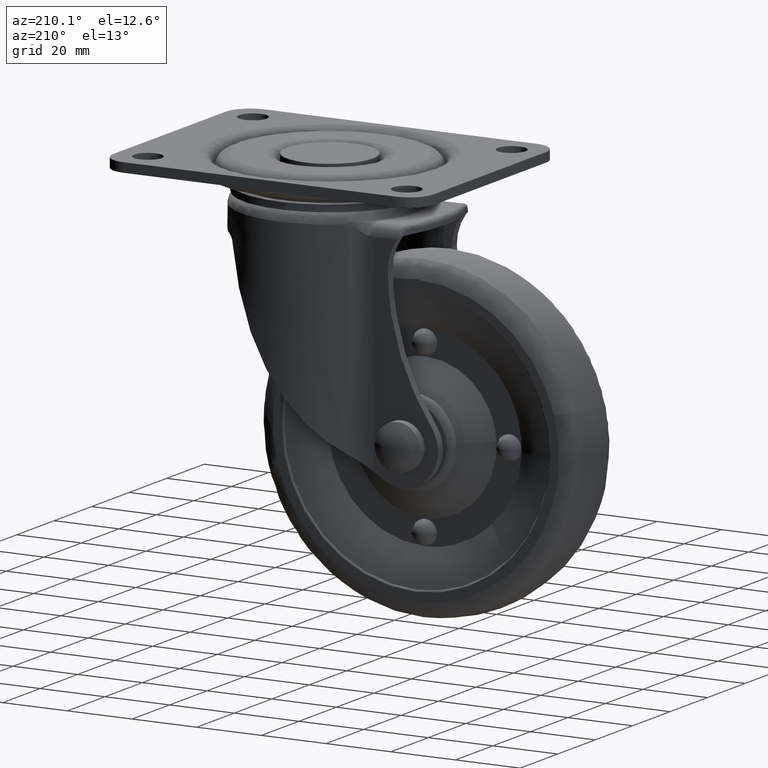
[diagram: clean part render]
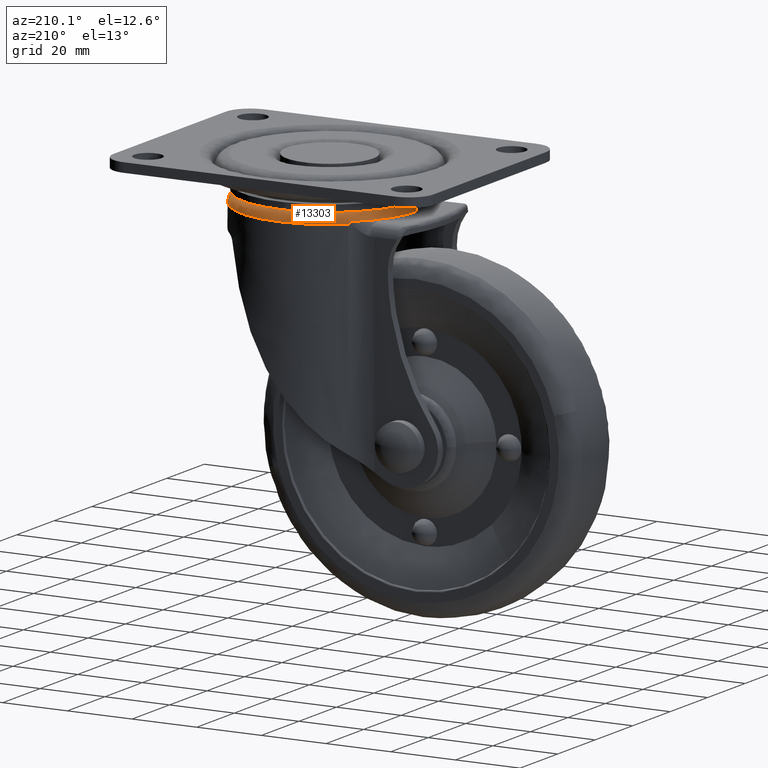
[diagram: same view with one face highlighted and labeled with its STEP entity id]
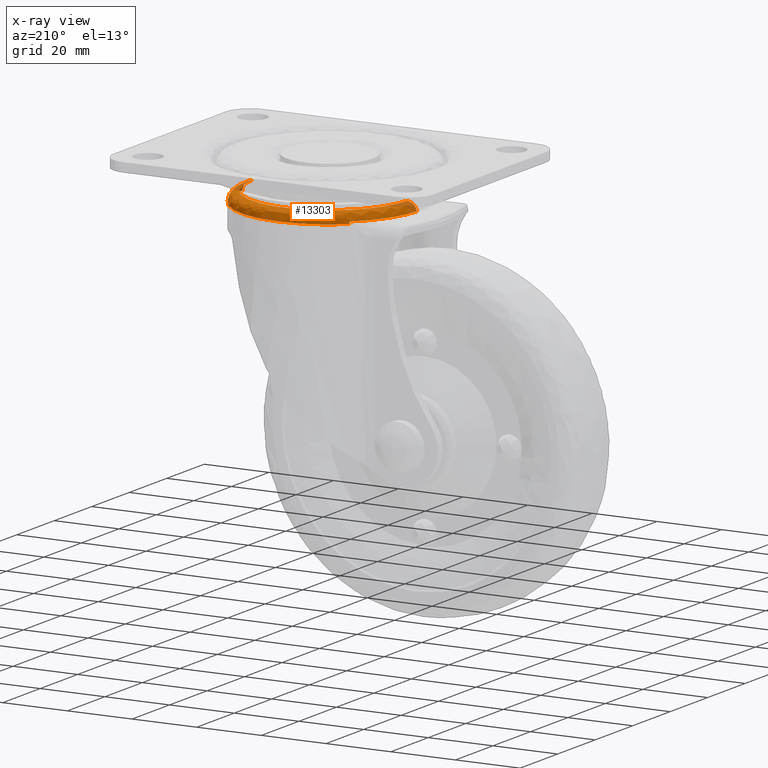
[diagram: x-ray of the same camera — body ghosted, the highlighted face saturated]
A machine part, auxiliary view. The second image highlights one B-rep face of the part: STEP entity #13303.
The next image is the same camera in x-ray: the body ghosted, the highlighted face saturated — about 6% of this face is hidden behind the body in this view.
In plain terms, the highlighted face is a freeform B-spline surface patch.
Its self-contained STEP definition (entity closure, byte-faithful):
#12942=CARTESIAN_POINT('',(24.225737307654772,-0.608987416260908,-10.315000000022350));
#12943=VERTEX_POINT('',#12942);
#12971=CARTESIAN_POINT('',(24.233390463561449,0.0,-10.314999999999991));
#12972=VERTEX_POINT('',#12971);
#12973=CARTESIAN_POINT('',(24.225737307654772,-0.608987416260908,-10.315000000022353));
#12974=CARTESIAN_POINT('',(24.233390467823124,-0.304541796912135,-10.315000000011169));
#12975=CARTESIAN_POINT('',(24.233390463561449,0.0,-10.314999999999991));
#12983=(BOUNDED_CURVE()B_SPLINE_CURVE(2,(#12973,#12974,#12975),.UNSPECIFIED.,.F.,.U.)B_SPLINE_CURVE_WITH_KNOTS((3,3),(0.991159783528323,1.0),.UNSPECIFIED.)CURVE()GEOMETRIC_REPRESENTATION_ITEM()RATIONAL_B_SPLINE_CURVE((0.989826157668815,0.994821521085206,1.0))REPRESENTATION_ITEM(''));
#12984=EDGE_CURVE('',#12943,#12972,#12983,.T.);
#12986=CARTESIAN_POINT('',(-24.225737311106109,0.608987416468398,-10.315000000031411));
#12987=VERTEX_POINT('',#12986);
#12988=CARTESIAN_POINT('',(24.233390463561449,0.0,-10.314999999999991));
#12989=CARTESIAN_POINT('',(24.233502866825908,1.376691563319465,-10.315000000000000));
#12990=CARTESIAN_POINT('',(24.023315524541712,3.835043101486077,-10.315000000000159));
#12991=CARTESIAN_POINT('',(23.107903959075440,7.618904221832461,-10.315000000000840));
#12992=CARTESIAN_POINT('',(21.804871324178819,10.765622034311740,-10.315000000001421));
#12993=CARTESIAN_POINT('',(20.171112871667219,13.518036131572529,-10.315000000003200));
#12994=CARTESIAN_POINT('',(18.424003583465399,15.839298484977530,-10.315000000003330));
#12995=CARTESIAN_POINT('',(15.885083643589610,18.457994298868179,-10.315000000005771));
#12996=CARTESIAN_POINT('',(12.971039026836030,20.584416146703969,-10.315000000007281));
#12997=CARTESIAN_POINT('',(9.867395680989695,22.192861504132221,-10.315000000009730));
#12998=CARTESIAN_POINT('',(6.642824563417604,23.416226598126041,-10.315000000011390));
#12999=CARTESIAN_POINT('',(3.109355808563381,24.137186928924589,-10.315000000014100));
#13000=CARTESIAN_POINT('',(-0.187992814180632,24.278803157328401,-10.315000000015740));
#13001=CARTESIAN_POINT('',(-2.889568116545575,24.107011136494361,-10.315000000017919));
#13002=CARTESIAN_POINT('',(-5.705408608693996,23.623568064083500,-10.315000000019509));
#13003=CARTESIAN_POINT('',(-9.188935373256005,22.542663163727308,-10.315000000021890));
#13004=CARTESIAN_POINT('',(-12.852445726603580,20.703664113729509,-10.315000000024179));
#13005=CARTESIAN_POINT('',(-16.079786581859981,18.260947788197068,-10.315000000026281));
#13006=CARTESIAN_POINT('',(-18.646583176102471,15.601741398691740,-10.315000000027920));
#13007=CARTESIAN_POINT('',(-20.383805793842999,13.207654626783990,-10.315000000029020));
#13008=CARTESIAN_POINT('',(-21.806501550550649,10.676518474066739,-10.315000000029929));
#13009=CARTESIAN_POINT('',(-23.050672983666988,7.779119228597925,-10.315000000030670));
#13010=CARTESIAN_POINT('',(-23.953938528056010,4.290914557439240,-10.315000000031359));
#13011=CARTESIAN_POINT('',(-24.197346428867430,1.739472661567534,-10.315000000031331));
#13012=CARTESIAN_POINT('',(-24.225737311106109,0.608987416468398,-10.315000000031411));
#13013=B_SPLINE_CURVE_WITH_KNOTS('',3,(#12988,#12989,#12990,#12991,#12992,#12993,#12994,#12995,#12996,#12997,#12998,#12999,#13000,#13001,#13002,#13003,#13004,#13005,#13006,#13007,#13008,#13009,#13010,#13011,#13012),.UNSPECIFIED.,.F.,.U.,(4,1,1,1,1,1,1,1,1,1,1,1,1,1,1,1,1,1,1,1,1,1,4),(0.000000208844170,4.130066622161422,7.375179134809542,11.652878571493231,14.307949888824950,16.963063850261129,20.355687240495168,25.223376685463041,27.730972267286852,30.828590158491082,35.548758791748412,38.498733310464459,40.711351604387517,43.661428821347727,47.054011138954138,51.626681889893753,55.904353348834888,59.149471599302323,62.689592804545157,64.754667412855866,67.852280601894066,72.129968067586020,75.522506513564750),.UNSPECIFIED.);
#13014=EDGE_CURVE('',#12972,#12987,#13013,.T.);
#13062=CARTESIAN_POINT('',(-27.339932630181440,0.687272164162799,-12.819781876683050));
#13063=VERTEX_POINT('',#13062);
#13064=CARTESIAN_POINT('',(-27.339932630181437,0.687272164162799,-12.819781876683061));
#13065=CARTESIAN_POINT('',(-26.784117030470657,0.673300053083474,-10.321710274287522));
#13066=CARTESIAN_POINT('',(-24.225737311106112,0.608987416468398,-10.315000000031409));
#13074=(BOUNDED_CURVE()B_SPLINE_CURVE(2,(#13064,#13065,#13066),.UNSPECIFIED.,.F.,.U.)B_SPLINE_CURVE_WITH_KNOTS((3,3),(-1.506833460234846,-0.266299095145787),.UNSPECIFIED.)CURVE()GEOMETRIC_REPRESENTATION_ITEM()RATIONAL_B_SPLINE_CURVE((0.818984262593462,0.665829130785551,0.887539155097013))REPRESENTATION_ITEM(''));
#13075=EDGE_CURVE('',#13063,#12987,#13074,.T.);
#13132=CARTESIAN_POINT('',(27.416338891092579,-0.689192867609886,-13.514988998429271));
#13133=VERTEX_POINT('',#13132);
#13155=CARTESIAN_POINT('',(27.416338891092572,-0.689192867609886,-13.514988998429271));
#13156=CARTESIAN_POINT('',(27.416338889517561,-0.689192867923180,-10.323368500865676));
#13157=CARTESIAN_POINT('',(24.225737307654775,-0.608987416260908,-10.315000000022350));
#13165=(BOUNDED_CURVE()B_SPLINE_CURVE(2,(#13155,#13156,#13157),.UNSPECIFIED.,.F.,.U.)B_SPLINE_CURVE_WITH_KNOTS((3,3),(-1.723441281479385,-0.266299094029420),.UNSPECIFIED.)CURVE()GEOMETRIC_REPRESENTATION_ITEM()RATIONAL_B_SPLINE_CURVE((0.883897566960545,0.627116679998441,0.887539155496051))REPRESENTATION_ITEM(''));
#13166=EDGE_CURVE('',#13133,#12943,#13165,.T.);
#13172=CARTESIAN_POINT('',(27.389319856032024,-1.455252412303548,-13.737698787926252));
#13173=CARTESIAN_POINT('',(27.398894833543750,-1.074356380579619,-13.737698787926258));
#13174=CARTESIAN_POINT('',(28.097579863154873,26.719584114634998,-13.737698787926252));
#13175=CARTESIAN_POINT('',(0.688997874259945,27.408581988894934,-13.737698787926254));
#13176=CARTESIAN_POINT('',(-26.719584114634998,28.097579863154873,-13.737698787926252));
#13177=CARTESIAN_POINT('',(-27.418269144237161,0.303639368296699,-13.737698787926250));
#13178=CARTESIAN_POINT('',(-27.427844121740129,-0.077256663079032,-13.737698787926259));
#13179=CARTESIAN_POINT('',(27.644422046560383,-1.468806530481788,-10.077429794516892));
#13180=CARTESIAN_POINT('',(27.654086204736327,-1.084362860022503,-10.077429794516888));
#13181=CARTESIAN_POINT('',(28.359278737362501,26.968448433773926,-10.077429794516890));
#13182=CARTESIAN_POINT('',(0.695415151794289,27.663863585568219,-10.077429794516890));
#13183=CARTESIAN_POINT('',(-26.968448433773926,28.359278737362501,-10.077429794516890));
#13184=CARTESIAN_POINT('',(-27.673640966391069,0.306467443925824,-10.077429794516890));
#13185=CARTESIAN_POINT('',(-27.683305124558178,-0.077976226182021,-10.077429794516888));
#13186=CARTESIAN_POINT('',(23.987151853423164,-1.274488040684143,-10.322112186925478));
#13187=CARTESIAN_POINT('',(23.995537473831924,-0.940905060115315,-10.322112186925478));
#13188=CARTESIAN_POINT('',(24.607435249720087,23.400607426069751,-10.322112186925477));
#13189=CARTESIAN_POINT('',(0.603413911825169,24.004021337894926,-10.322112186925477));
#13190=CARTESIAN_POINT('',(-23.400607426069751,24.607435249720087,-10.322112186925477));
#13191=CARTESIAN_POINT('',(-24.012505201950077,0.265922763847177,-10.322112186925478));
#13192=CARTESIAN_POINT('',(-24.020890822351170,-0.067660216416705,-10.322112186925477));
#13200=(BOUNDED_SURFACE()B_SPLINE_SURFACE(2,2,((#13172,#13179,#13186),(#13173,#13180,#13187),(#13174,#13181,#13188),(#13175,#13182,#13189),(#13176,#13183,#13190),(#13177,#13184,#13191),(#13178,#13185,#13192)),.UNSPECIFIED.,.F.,.F.,.U.)B_SPLINE_SURFACE_WITH_KNOTS((3,1,2,1,3),(3,3),(0.0,0.908527434565892,46.334899110422803,91.761270786279724,92.669798220000359),(0.0,5.821916429811290),.UNSPECIFIED.)GEOMETRIC_REPRESENTATION_ITEM()RATIONAL_B_SPLINE_SURFACE(((0.921511544463766,0.607021300674699,0.925563866831873),(0.916175965010583,0.603506629155951,0.920204824310761),(0.644061413206207,0.424258381902658,0.646893656043370),(0.910840385557400,0.599991957637203,0.914845781789649),(0.644061413206207,0.424258381902658,0.646893656043370),(0.916175965005619,0.603506629152681,0.920204824305775),(0.921511544453838,0.607021300668159,0.925563866821901)))REPRESENTATION_ITEM('')SURFACE());
#13201=ORIENTED_EDGE('',*,*,#13014,.F.);
#13202=ORIENTED_EDGE('',*,*,#12984,.F.);
#13203=ORIENTED_EDGE('',*,*,#13166,.F.);
#13204=CARTESIAN_POINT('',(27.425000000000001,0.0,-13.514989000000019));
#13205=VERTEX_POINT('',#13204);
#13206=CARTESIAN_POINT('',(27.425000000000001,0.0,-13.514989000000019));
#13207=CARTESIAN_POINT('',(27.424999999999994,-0.344650856021881,-13.514988999214646));
#13208=CARTESIAN_POINT('',(27.416338891092575,-0.689192867609886,-13.514988998429267));
#13216=(BOUNDED_CURVE()B_SPLINE_CURVE(2,(#13206,#13207,#13208),.UNSPECIFIED.,.F.,.U.)B_SPLINE_CURVE_WITH_KNOTS((3,3),(0.0,0.011612402897055),.UNSPECIFIED.)CURVE()GEOMETRIC_REPRESENTATION_ITEM()RATIONAL_B_SPLINE_CURVE((1.0,0.996335781353829,0.992841764240547))REPRESENTATION_ITEM(''));
#13217=EDGE_CURVE('',#13205,#13133,#13216,.T.);
#13218=ORIENTED_EDGE('',*,*,#13217,.F.);
#13219=CARTESIAN_POINT('',(-17.809410793729342,20.855587073496569,-13.514989000000019));
#13220=VERTEX_POINT('',#13219);
#13221=CARTESIAN_POINT('',(-17.809410793729342,20.855587073496569,-13.514989000000019));
#13222=CARTESIAN_POINT('',(-17.407408522345190,21.198869900111600,-13.514988999999980));
#13223=CARTESIAN_POINT('',(-16.963816380801472,21.556077711161500,-13.514989000000080));
#13224=CARTESIAN_POINT('',(-16.476828912088688,21.923360915446711,-13.514989000000011));
#13225=CARTESIAN_POINT('',(-16.379339016086860,21.996737665960801,-13.514989000000019));
#13226=CARTESIAN_POINT('',(-15.268520955753900,22.820042821982021,-13.514989000000041));
#13227=CARTESIAN_POINT('',(-12.960629670096759,24.281173016396171,-13.514989000000000));
#13228=CARTESIAN_POINT('',(-9.605727643534490,25.769878054157349,-13.514989000000069));
#13229=CARTESIAN_POINT('',(-6.092184222451769,26.813076968431751,-13.514988999999950));
#13230=CARTESIAN_POINT('',(-2.070053252011648,27.479182623380190,-13.514989000000011));
#13231=CARTESIAN_POINT('',(2.179402166805020,27.458134872017212,-13.514989000000240));
#13232=CARTESIAN_POINT('',(5.876909756450394,26.841728988624691,-13.514988999999771));
#13233=CARTESIAN_POINT('',(9.484355174460896,25.836331577147330,-13.514989000000350));
#13234=CARTESIAN_POINT('',(13.224826475161059,24.191795464136980,-13.514988999999989));
#13235=CARTESIAN_POINT('',(17.422271081200002,21.368223424400870,-13.514988999999920));
#13236=CARTESIAN_POINT('',(20.531500198458328,18.352907396947959,-13.514989000000311));
#13237=CARTESIAN_POINT('',(22.784350671851509,15.358114755336659,-13.514989000000000));
#13238=CARTESIAN_POINT('',(24.412391751092802,12.631443268260780,-13.514989000000041));
#13239=CARTESIAN_POINT('',(25.682782665757330,9.806462986611079,-13.514989000000019));
#13240=CARTESIAN_POINT('',(26.628994847960900,6.774218926554003,-13.514989000000019));
#13241=CARTESIAN_POINT('',(27.262600899882749,3.578544758500911,-13.514988999999950));
#13242=CARTESIAN_POINT('',(27.425064571824890,1.301300663855342,-13.514989000000440));
#13243=CARTESIAN_POINT('',(27.425000000000001,0.0,-13.514989000000019));
#13244=B_SPLINE_CURVE_WITH_KNOTS('',3,(#13221,#13222,#13223,#13224,#13225,#13226,#13227,#13228,#13229,#13230,#13231,#13232,#13233,#13234,#13235,#13236,#13237,#13238,#13239,#13240,#13241,#13242,#13243),.UNSPECIFIED.,.F.,.U.,(4,1,1,1,1,1,1,1,1,1,1,1,1,1,1,1,1,1,1,1,4),(-0.000008777833926,1.585889864309991,1.707888320422747,1.829886776535410,1.951946886555604,5.855864107907983,10.003764080079240,12.931704660612970,16.835638888398140,22.203548854672849,25.619473519935749,28.059422607863102,33.427209471957703,37.819159144268937,43.187047255784151,46.358989983688858,49.042945396970012,52.702884044444708,55.630827793817041,58.558739524195161,62.462642689829387),.UNSPECIFIED.);
#13245=EDGE_CURVE('',#13220,#13205,#13244,.T.);
#13246=ORIENTED_EDGE('',*,*,#13245,.F.);
#13247=CARTESIAN_POINT('',(-17.882948352411351,20.792565575825140,-13.514989000000019));
#13248=VERTEX_POINT('',#13247);
#13249=CARTESIAN_POINT('',(-17.809410793729342,20.855587073496569,-13.514989000000019));
#13250=CARTESIAN_POINT('',(-17.846235211157914,20.824141246778083,-13.514989000000019));
#13251=CARTESIAN_POINT('',(-17.882948352411351,20.792565575825140,-13.514989000000019));
#13259=(BOUNDED_CURVE()B_SPLINE_CURVE(2,(#13249,#13250,#13251),.UNSPECIFIED.,.F.,.U.)CURVE()GEOMETRIC_REPRESENTATION_ITEM()QUASI_UNIFORM_CURVE()RATIONAL_B_SPLINE_CURVE((1.0,0.999998441180178,1.0))REPRESENTATION_ITEM(''));
#13260=EDGE_CURVE('',#13220,#13248,#13259,.T.);
#13261=ORIENTED_EDGE('',*,*,#13260,.T.);
#13262=CARTESIAN_POINT('',(-18.099696069676298,20.502323326906399,-12.819781906679539));
#13263=VERTEX_POINT('',#13262);
#13264=CARTESIAN_POINT('',(-17.882948352411351,20.792565575825140,-13.514989000000019));
#13265=CARTESIAN_POINT('',(-17.885064778989829,20.790745319693809,-13.513186291678220));
#13266=CARTESIAN_POINT('',(-17.887130366062461,20.788966231842188,-13.511275753691450));
#13267=CARTESIAN_POINT('',(-17.900591306574260,20.777350639269290,-13.497979979287170));
#13268=CARTESIAN_POINT('',(-17.910371576946869,20.768799881432429,-13.484300232175700));
#13269=CARTESIAN_POINT('',(-17.928123375590960,20.752944653271491,-13.455619716167121));
#13270=CARTESIAN_POINT('',(-17.936147709747569,20.745595467745499,-13.440382411340421));
#13271=CARTESIAN_POINT('',(-17.958646324066830,20.724375526385071,-13.393396443594050));
#13272=CARTESIAN_POINT('',(-17.971370951321280,20.711505454000761,-13.360894006762461));
#13273=CARTESIAN_POINT('',(-17.994635929040509,20.686188167490130,-13.295065882241991));
#13274=CARTESIAN_POINT('',(-18.005094710993500,20.673813298016160,-13.261687727763890));
#13275=CARTESIAN_POINT('',(-18.034076104629811,20.636507022962569,-13.160898490570411));
#13276=CARTESIAN_POINT('',(-18.050227170768700,20.611373239150758,-13.092847671298770));
#13277=CARTESIAN_POINT('',(-18.071190280417259,20.571856960666231,-12.990481543237131));
#13278=CARTESIAN_POINT('',(-18.077601201687418,20.558424400687610,-12.956360519839601));
#13279=CARTESIAN_POINT('',(-18.086439029845309,20.537806240382420,-12.905229142685480));
#13280=CARTESIAN_POINT('',(-18.089254777987222,20.530855650976701,-12.888193396871131));
#13281=CARTESIAN_POINT('',(-18.094636087782732,20.516789071920261,-12.854143685342271));
#13282=CARTESIAN_POINT('',(-18.097208146747970,20.509619220255509,-12.836958460646491));
#13283=CARTESIAN_POINT('',(-18.099696069676298,20.502323326906399,-12.819781906679539));
#13284=B_SPLINE_CURVE_WITH_KNOTS('',3,(#13264,#13265,#13266,#13267,#13268,#13269,#13270,#13271,#13272,#13273,#13274,#13275,#13276,#13277,#13278,#13279,#13280,#13281,#13282,#13283),.UNSPECIFIED.,.F.,.U.,(4,2,2,2,2,2,2,2,2,4),(0.113942652912617,0.125000000000017,0.187500000000016,0.250000000000015,0.375000000000013,0.500000000000011,0.750000000000002,0.874999999999999,0.937500000000000,1.0),.UNSPECIFIED.);
#13285=EDGE_CURVE('',#13248,#13263,#13284,.T.);
#13286=ORIENTED_EDGE('',*,*,#13285,.T.);
#13287=CARTESIAN_POINT('',(-18.099696069676298,20.502323326906399,-12.819781906679539));
#13288=CARTESIAN_POINT('',(-27.040230952706441,12.609512274954181,-12.819781891681291));
#13289=CARTESIAN_POINT('',(-27.339932630181437,0.687272164162799,-12.819781876683050));
#13297=(BOUNDED_CURVE()B_SPLINE_CURVE(2,(#13287,#13288,#13289),.UNSPECIFIED.,.F.,.U.)B_SPLINE_CURVE_WITH_KNOTS((3,3),(0.0,0.484760590993558),.UNSPECIFIED.)CURVE()GEOMETRIC_REPRESENTATION_ITEM()RATIONAL_B_SPLINE_CURVE((1.0,0.914237418550853,0.994772115775393))REPRESENTATION_ITEM(''));
#13298=EDGE_CURVE('',#13263,#13063,#13297,.T.);
#13299=ORIENTED_EDGE('',*,*,#13298,.T.);
#13300=ORIENTED_EDGE('',*,*,#13075,.T.);
#13301=EDGE_LOOP('',(#13201,#13202,#13203,#13218,#13246,#13261,#13286,#13299,#13300));
#13302=FACE_OUTER_BOUND('',#13301,.T.);
#13303=ADVANCED_FACE('',(#13302),#13200,.T.);